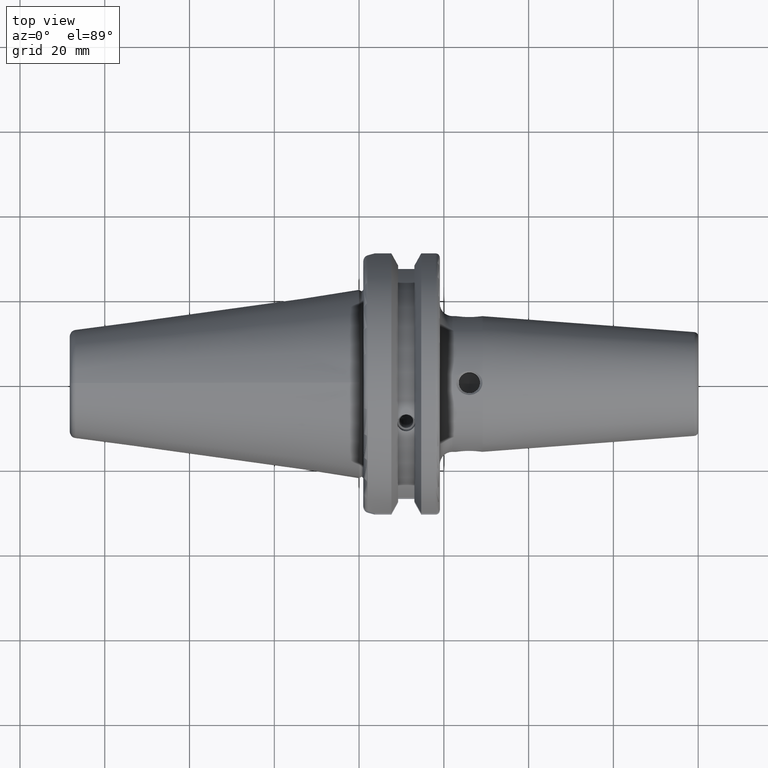
[diagram: clean part render]
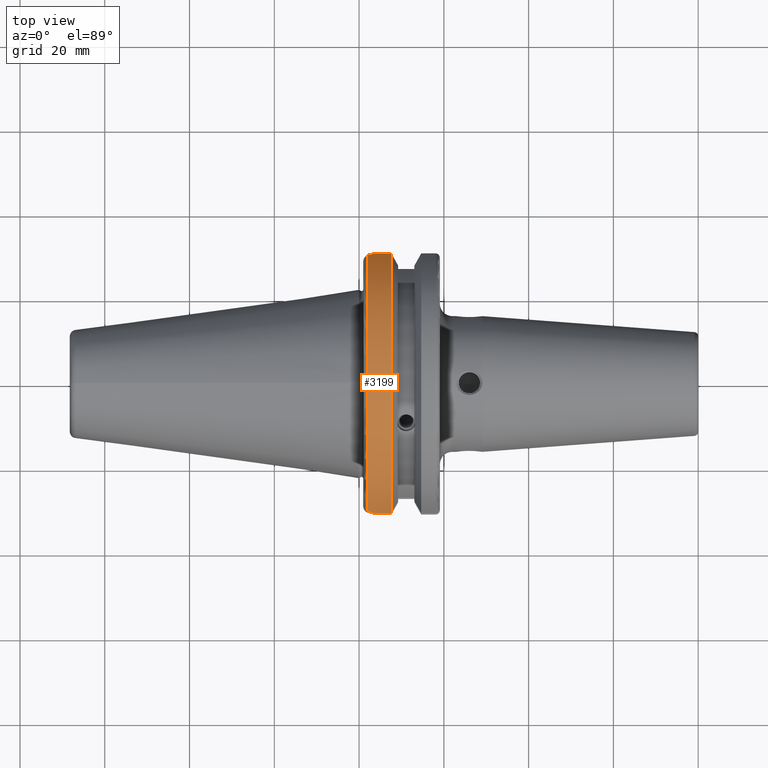
[diagram: same view with one face highlighted and labeled with its STEP entity id]
A machine part, top view. The second image highlights one B-rep face of the part: STEP entity #3199.
In plain terms, the highlighted cylindrical surface (partial cylindrical patch) has radius 31.75 mm, axis along (1, 0, 0).
Its self-contained STEP definition (entity closure, byte-faithful):
#556=CARTESIAN_POINT('',(1.45E-1,1.207814555302E0,3.22E-1));
#557=CARTESIAN_POINT('',(1.225704219239E-1,1.201834892192E0,3.444295780761E-1));
#558=CARTESIAN_POINT('',(1.002363207547E-1,1.195212064005E0,3.667636792453E-1));
#559=CARTESIAN_POINT('',(7.8E-2,1.187930553526E0,3.89E-1));
#561=DIRECTION('',(1.E0,0.E0,0.E0));
#562=VECTOR('',#561,1.547323041936E-1);
#563=CARTESIAN_POINT('',(1.45E-1,1.207814555302E0,3.22E-1));
#564=LINE('',#563,#562);
#565=DIRECTION('',(1.E0,0.E0,0.E0));
#566=VECTOR('',#565,1.547323041936E-1);
#567=CARTESIAN_POINT('',(1.45E-1,-1.207814555302E0,3.22E-1));
#568=LINE('',#567,#566);
#569=CARTESIAN_POINT('',(7.8E-2,-1.187930553526E0,3.89E-1));
#570=CARTESIAN_POINT('',(1.002363207547E-1,-1.195212064005E0,
3.667636792453E-1));
#571=CARTESIAN_POINT('',(1.225704219239E-1,-1.201834892192E0,
3.444295780761E-1));
#572=CARTESIAN_POINT('',(1.45E-1,-1.207814555302E0,3.22E-1));
#772=CARTESIAN_POINT('',(7.8E-2,0.E0,0.E0));
#773=DIRECTION('',(1.E0,0.E0,0.E0));
#774=DIRECTION('',(0.E0,9.503444428206E-1,3.112E-1));
#775=AXIS2_PLACEMENT_3D('',#772,#773,#774);
#1184=CARTESIAN_POINT('',(2.997323041936E-1,-1.207814555302E0,3.22E-1));
#1186=CARTESIAN_POINT('',(2.997323041936E-1,0.E0,0.E0));
#1187=DIRECTION('',(-1.E0,0.E0,0.E0));
#1188=DIRECTION('',(0.E0,-9.662516442418E-1,2.576E-1));
#1189=AXIS2_PLACEMENT_3D('',#1186,#1187,#1188);
#1191=CARTESIAN_POINT('',(2.997323041936E-1,1.207814555302E0,3.22E-1));
#2122=VERTEX_POINT('',#1191);
#2145=VERTEX_POINT('',#1184);
#2170=CARTESIAN_POINT('',(7.8E-2,1.187930553526E0,3.89E-1));
#2171=CARTESIAN_POINT('',(7.8E-2,-1.187930553526E0,3.89E-1));
#2172=VERTEX_POINT('',#2170);
#2173=VERTEX_POINT('',#2171);
#2216=CARTESIAN_POINT('',(1.45E-1,1.207814555302E0,3.22E-1));
#2218=VERTEX_POINT('',#2216);
#2225=CARTESIAN_POINT('',(1.45E-1,-1.207814555302E0,3.22E-1));
#2227=VERTEX_POINT('',#2225);
#3180=CARTESIAN_POINT('',(0.E0,0.E0,0.E0));
#3181=DIRECTION('',(1.E0,0.E0,0.E0));
#3182=DIRECTION('',(0.E0,0.E0,1.E0));
#3183=AXIS2_PLACEMENT_3D('',#3180,#3181,#3182);
#3184=CYLINDRICAL_SURFACE('',#3183,1.25E0);
#3186=ORIENTED_EDGE('',*,*,#3185,.F.);
#3188=ORIENTED_EDGE('',*,*,#3187,.F.);
#3190=ORIENTED_EDGE('',*,*,#3189,.T.);
#3192=ORIENTED_EDGE('',*,*,#3191,.F.);
#3194=ORIENTED_EDGE('',*,*,#3193,.F.);
#3196=ORIENTED_EDGE('',*,*,#3195,.F.);
#3197=EDGE_LOOP('',(#3186,#3188,#3190,#3192,#3194,#3196));
#3198=FACE_OUTER_BOUND('',#3197,.F.);
#3199=ADVANCED_FACE('',(#3198),#3184,.T.);
#560=B_SPLINE_CURVE_WITH_KNOTS('',3,(#556,#557,#558,#559),.UNSPECIFIED.,.F.,.F.,
(4,4),(0.E0,1.E0),.UNSPECIFIED.);
#573=B_SPLINE_CURVE_WITH_KNOTS('',3,(#569,#570,#571,#572),.UNSPECIFIED.,.F.,.F.,
(4,4),(0.E0,1.E0),.UNSPECIFIED.);
#776=CIRCLE('',#775,1.25E0);
#1190=CIRCLE('',#1189,1.25E0);
#3185=EDGE_CURVE('',#2172,#2173,#776,.T.);
#3187=EDGE_CURVE('',#2218,#2172,#560,.T.);
#3189=EDGE_CURVE('',#2218,#2122,#564,.T.);
#3191=EDGE_CURVE('',#2145,#2122,#1190,.T.);
#3193=EDGE_CURVE('',#2227,#2145,#568,.T.);
#3195=EDGE_CURVE('',#2173,#2227,#573,.T.);